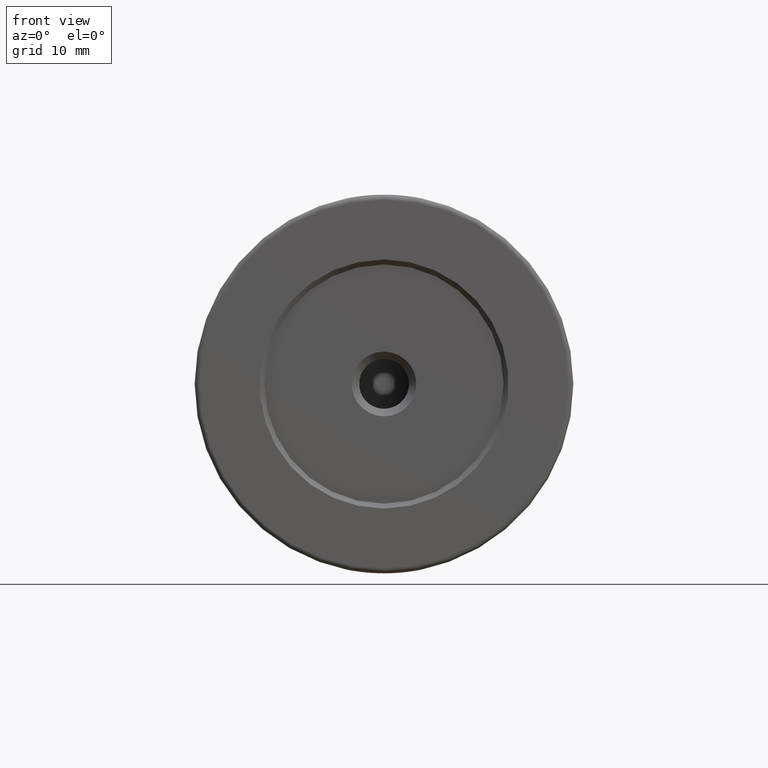
[diagram: clean part render]
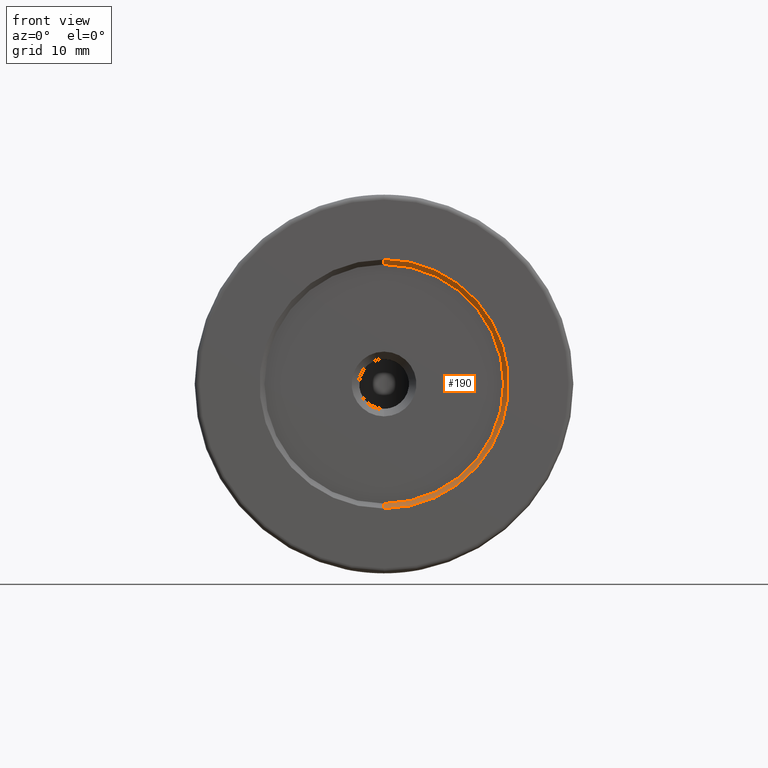
[diagram: same view with one face highlighted and labeled with its STEP entity id]
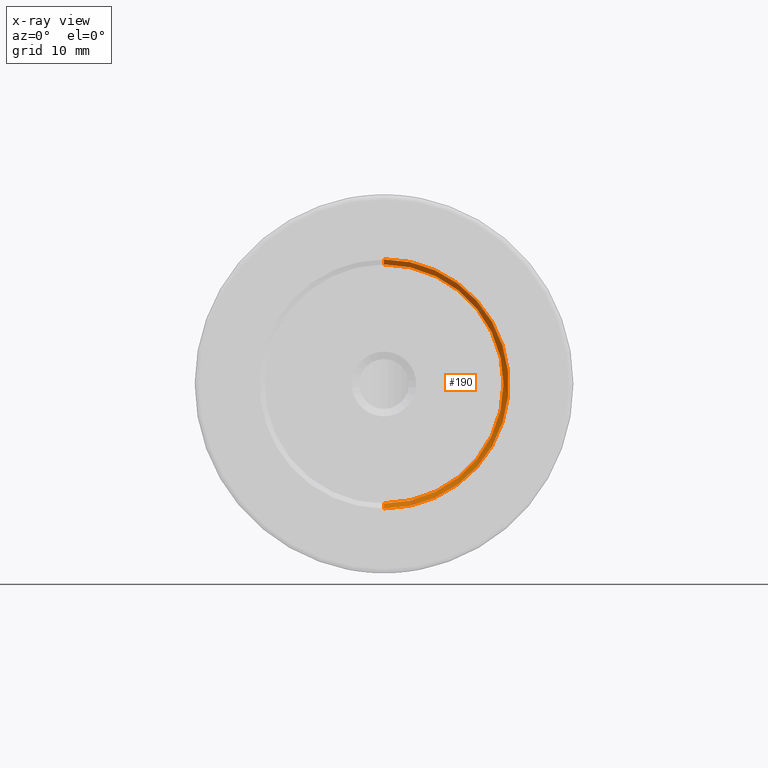
[diagram: x-ray of the same camera — body ghosted, the highlighted face saturated]
A machine part, front view. The second image highlights one B-rep face of the part: STEP entity #190.
The next image is the same camera in x-ray: the body ghosted, the highlighted face saturated — about 0% of this face is hidden behind the body in this view.
In plain terms, the highlighted conical surface has half-angle 45 deg.
Its self-contained STEP definition (entity closure, byte-faithful):
#15 = CARTESIAN_POINT ( 'NONE',  ( -85.22679983354142053, -29.26133999167428357, 387.5000000000000000 ) ) ;
#23 = EDGE_CURVE ( 'NONE', #875, #540, #335, .T. ) ;
#31 = EDGE_CURVE ( 'NONE', #540, #729, #538, .T. ) ;
#51 = CARTESIAN_POINT ( 'NONE',  ( -85.22679983354142053, -29.26133999167428357, 412.5000000000000568 ) ) ;
#74 = VECTOR ( 'NONE', #809, 1000.000000000000000 ) ;
#125 = CIRCLE ( 'NONE', #236, 12.00000000000001066 ) ;
#171 = AXIS2_PLACEMENT_3D ( 'NONE', #446, #826, #196 ) ;
#185 = CARTESIAN_POINT ( 'NONE',  ( -85.22679983354142053, -28.76133999167428357, 400.0000000000000000 ) ) ;
#190 = ADVANCED_FACE ( 'NONE', ( #892 ), #992, .F. ) ;
#196 = DIRECTION ( 'NONE',  ( 0.0000000000000000000, 0.0000000000000000000, 1.000000000000000000 ) ) ;
#198 = LINE ( 'NONE', #422, #900 ) ;
#200 = DIRECTION ( 'NONE',  ( 0.0000000000000000000, 0.0000000000000000000, -1.000000000000000000 ) ) ;
#219 = EDGE_CURVE ( 'NONE', #875, #586, #125, .T. ) ;
#236 = AXIS2_PLACEMENT_3D ( 'NONE', #185, #905, #200 ) ;
#307 = ORIENTED_EDGE ( 'NONE', *, *, #440, .T. ) ;
#335 = LINE ( 'NONE', #498, #74 ) ;
#346 = DIRECTION ( 'NONE',  ( -8.659560562354948882E-17, -0.7071067811865463515, -0.7071067811865487940 ) ) ;
#407 = DIRECTION ( 'NONE',  ( -0.0000000000000000000, 1.000000000000000000, -0.0000000000000000000 ) ) ;
#422 = CARTESIAN_POINT ( 'NONE',  ( -85.22679983354142053, -29.26133999167428357, 387.5000000000000000 ) ) ;
#440 = EDGE_CURVE ( 'NONE', #586, #729, #198, .T. ) ;
#446 = CARTESIAN_POINT ( 'NONE',  ( -85.22679983354142053, -29.26133999167428357, 400.0000000000000000 ) ) ;
#475 = CARTESIAN_POINT ( 'NONE',  ( -85.22679983354142053, -28.76133999167428357, 412.0000000000000568 ) ) ;
#498 = CARTESIAN_POINT ( 'NONE',  ( -85.22679983354142053, -29.26133999167428357, 412.5000000000000568 ) ) ;
#538 = CIRCLE ( 'NONE', #784, 12.50000000000001066 ) ;
#540 = VERTEX_POINT ( 'NONE', #51 ) ;
#563 = EDGE_LOOP ( 'NONE', ( #896, #307, #566, #800 ) ) ;
#566 = ORIENTED_EDGE ( 'NONE', *, *, #31, .F. ) ;
#569 = DIRECTION ( 'NONE',  ( 0.0000000000000000000, 0.0000000000000000000, 1.000000000000000000 ) ) ;
#586 = VERTEX_POINT ( 'NONE', #612 ) ;
#612 = CARTESIAN_POINT ( 'NONE',  ( -85.22679983354142053, -28.76133999167428357, 388.0000000000000000 ) ) ;
#719 = CARTESIAN_POINT ( 'NONE',  ( -85.22679983354142053, -29.26133999167428357, 400.0000000000000000 ) ) ;
#729 = VERTEX_POINT ( 'NONE', #15 ) ;
#784 = AXIS2_PLACEMENT_3D ( 'NONE', #719, #407, #569 ) ;
#800 = ORIENTED_EDGE ( 'NONE', *, *, #23, .F. ) ;
#809 = DIRECTION ( 'NONE',  ( 0.0000000000000000000, -0.7071067811865463515, 0.7071067811865487940 ) ) ;
#826 = DIRECTION ( 'NONE',  ( -0.0000000000000000000, -1.000000000000000000, -0.0000000000000000000 ) ) ;
#875 = VERTEX_POINT ( 'NONE', #475 ) ;
#892 = FACE_OUTER_BOUND ( 'NONE', #563, .T. ) ;
#896 = ORIENTED_EDGE ( 'NONE', *, *, #219, .T. ) ;
#900 = VECTOR ( 'NONE', #346, 1000.000000000000000 ) ;
#905 = DIRECTION ( 'NONE',  ( -0.0000000000000000000, 1.000000000000000000, -0.0000000000000000000 ) ) ;
#992 = CONICAL_SURFACE ( 'NONE', #171, 12.50000000000001066, 0.7853981633974500554 ) ;